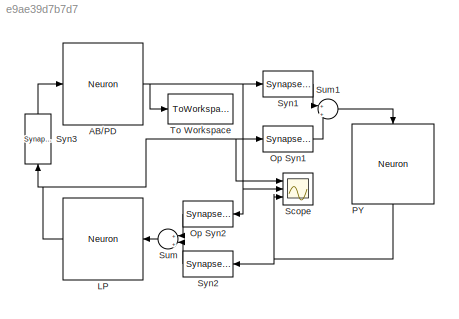
MODEL slx_e9ae39d7b7d7
KIND model
CONFIG AbsTol = auto
CONFIG EnableMultiTasking = off
CONFIG FixedStep = auto
CONFIG MaxStep = auto
CONFIG MinStep = auto
CONFIG RelTol = 1e-3
CONFIG SampleTimeConstraint = Unconstrained
CONFIG SolverName = VariableStepAuto
CONFIG StartTime = 0.0
CONFIG StopTime = 10.0
BLOCK [Reference] AB//PD  REF=neuromorphic_blocks/Neural Blocks/Neuron  (lib defined in slx_48105648e755)
  Ports = [1, 1]
  SourceBlock = neuromorphic_blocks/Neural Blocks/Neuron
  SourceProductName = NeurCont Toolbox
  SourceType = Neuron
BLOCK [Reference] LP  REF=neuromorphic_blocks/Neural Blocks/Neuron  (lib defined in slx_48105648e755)
  Ports = [1, 1]
  SourceBlock = neuromorphic_blocks/Neural Blocks/Neuron
  SourceProductName = NeurCont Toolbox
  SourceType = Neuron
BLOCK [Reference] Op Syn1  REF=neuromorphic_blocks/Neural Blocks/Synapse with Facilitation  (lib defined in slx_48105648e755)
  Ports = [1, 1]
  SourceBlock = neuromorphic_blocks/Neural Blocks/Synapse with Facilitation
  SourceProductName = NeurCont Toolbox
  SourceType = Synapse with Facilitation
BLOCK [Reference] Op Syn2  REF=neuromorphic_blocks/Neural Blocks/Synapse with Facilitation  (lib defined in slx_48105648e755)
  NameLocation = top
  Ports = [1, 1]
  SourceBlock = neuromorphic_blocks/Neural Blocks/Synapse with Facilitation
  SourceProductName = NeurCont Toolbox
  SourceType = Synapse with Facilitation
BLOCK [Reference] PY  REF=neuromorphic_blocks/Neural Blocks/Neuron  (lib defined in slx_48105648e755)
  NameLocation = left
  Ports = [1, 1]
  SourceBlock = neuromorphic_blocks/Neural Blocks/Neuron
  SourceProductName = NeurCont Toolbox
  SourceType = Neuron
BLOCK [Scope] Scope
  Floating = off
  NumInputPorts = 3
  Ports = [3]
  ScopeSpecificationString = Simulink.scopes.TimeScopeBlockCfg('CurrentConfiguration', extmgr.ConfigurationSet(extmgr.Configuration('Core','General UI',true),extmgr.Configuration('Core','Source UI',true),extmgr.Configuration('Sources','WiredSimulink',true),extmgr.Configuration('Visuals','Time Domain',true,'SerializedDisplays',{struct('MinYLimReal','-0.125','MaxYLimReal','1.125','YLabelReal','','MinYLimMag','0.00000','MaxYLimM...<+2757ch>
BLOCK [Sum] Sum
  Inputs = +|+
  NameLocation = top
  Ports = [2, 1]
BLOCK [Sum] Sum1
  Inputs = +|+
  Ports = [2, 1]
BLOCK [Reference] Syn1  REF=neuromorphic_blocks/Neural Blocks/Synapse with Facilitation  (lib defined in slx_48105648e755)
  Ports = [1, 1]
  SourceBlock = neuromorphic_blocks/Neural Blocks/Synapse with Facilitation
  SourceProductName = NeurCont Toolbox
  SourceType = Synapse with Facilitation
BLOCK [Reference] Syn2  REF=neuromorphic_blocks/Neural Blocks/Synapse with Facilitation  (lib defined in slx_48105648e755)
  NameLocation = top
  Ports = [1, 1]
  SourceBlock = neuromorphic_blocks/Neural Blocks/Synapse with Facilitation
  SourceProductName = NeurCont Toolbox
  SourceType = Synapse with Facilitation
BLOCK [Reference] Syn3  REF=neuromorphic_blocks/Neural Blocks/Synapse with Facilitation  (lib defined in slx_48105648e755)
  NameLocation = left
  Ports = [1, 1]
  SourceBlock = neuromorphic_blocks/Neural Blocks/Synapse with Facilitation
  SourceProductName = NeurCont Toolbox
  SourceType = Synapse with Facilitation
BLOCK [ToWorkspace] To Workspace
  FixptAsFi = on
  MaxDataPoints = inf
  Ports = [1]
  SampleTime = -1
  SaveFormat = Timeseries
  VariableName = simout
NET AB//PD:1 -> Op Syn2:1, Scope:2, Syn1:1, To Workspace:1
NET LP:1 -> Op Syn1:1, Scope:1, Syn3:1
LINE Op Syn1:1 -> Sum1:2
LINE Op Syn2:1 -> Sum:1
NET PY:1 -> Scope:3, Syn2:1
LINE Sum1:1 -> PY:1
LINE Sum:1 -> LP:1
LINE Syn1:1 -> Sum1:1
LINE Syn2:1 -> Sum:2
LINE Syn3:1 -> AB//PD:1
note: NET lines group one-source signal fan-out (src -> all destinations, sorted); 1:1 wires keep LINE
